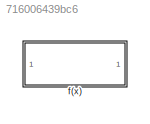
MODEL slx_716006439bc6
KIND model
CONFIG AbsTol = auto
CONFIG EnableMultiTasking = off
CONFIG FixedStep = auto
CONFIG MaxStep = auto
CONFIG MinStep = auto
CONFIG RelTol = 1e-3
CONFIG SampleTimeConstraint = Unconstrained
CONFIG Solver = VariableStepAuto
CONFIG SolverName = VariableStepAuto
CONFIG StartTime = 0.0
CONFIG StopTime = 10.0
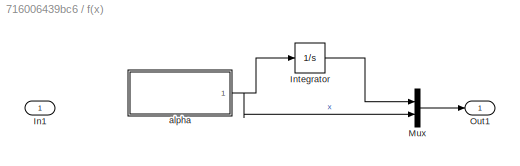
BLOCK [SubSystem] f(x)
  Ports = [1, 1]
  RequestExecContextInheritance = off
BLOCK [Inport] f(x)/In1
  IconDisplay = Port number
BLOCK [Integrator] f(x)/Integrator
  Ports = [1, 1]
BLOCK [Mux] f(x)/Mux
  DisplayOption = bar
  Inputs = 2
  Ports = [2, 1]
BLOCK [Outport] f(x)/Out1
  IconDisplay = Port number
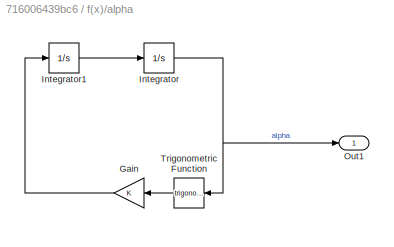
BLOCK [SubSystem] f(x)/alpha
  Ports = [0, 1]
  RequestExecContextInheritance = off
BLOCK [Gain] f(x)/alpha/Gain
  OutDataTypeStr = Inherit: Inherit via internal rule
  ParamDataTypeStr = Inherit: Inherit via internal rule
  SaturateOnIntegerOverflow = off
BLOCK [Integrator] f(x)/alpha/Integrator
  Ports = [1, 1]
BLOCK [Integrator] f(x)/alpha/Integrator1
  InitialCondition = 1
  Ports = [1, 1]
BLOCK [Outport] f(x)/alpha/Out1
  IconDisplay = Port number
BLOCK [Trigonometry] f(x)/alpha/Trigonometric Function
  Ports = [1, 1]
LINE f(x)/Integrator:1 -> f(x)/Mux:1
LINE f(x)/Mux:1 -> f(x)/Out1:1
LINE f(x)/alpha/Gain:1 -> f(x)/alpha/Integrator1:1
LINE f(x)/alpha/Integrator1:1 -> f(x)/alpha/Integrator:1
NET f(x)/alpha/Integrator:1 -> f(x)/alpha/Out1:1, f(x)/alpha/Trigonometric Function:1
LINE f(x)/alpha/Trigonometric Function:1 -> f(x)/alpha/Gain:1
NET f(x)/alpha:1 -> f(x)/Integrator:1, f(x)/Mux:2
note: NET lines group one-source signal fan-out (src -> all destinations, sorted); 1:1 wires keep LINE
